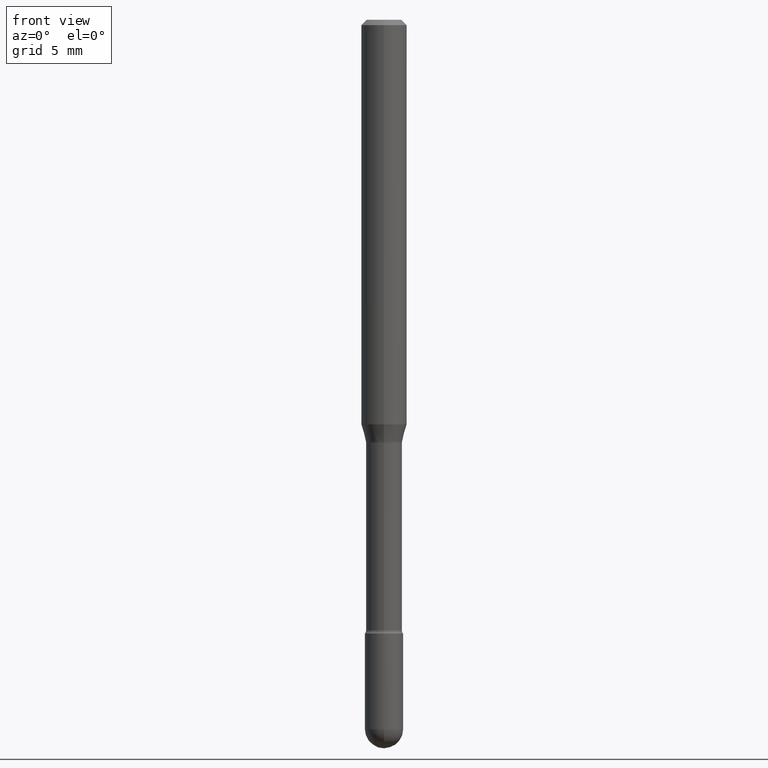
[diagram: clean part render]
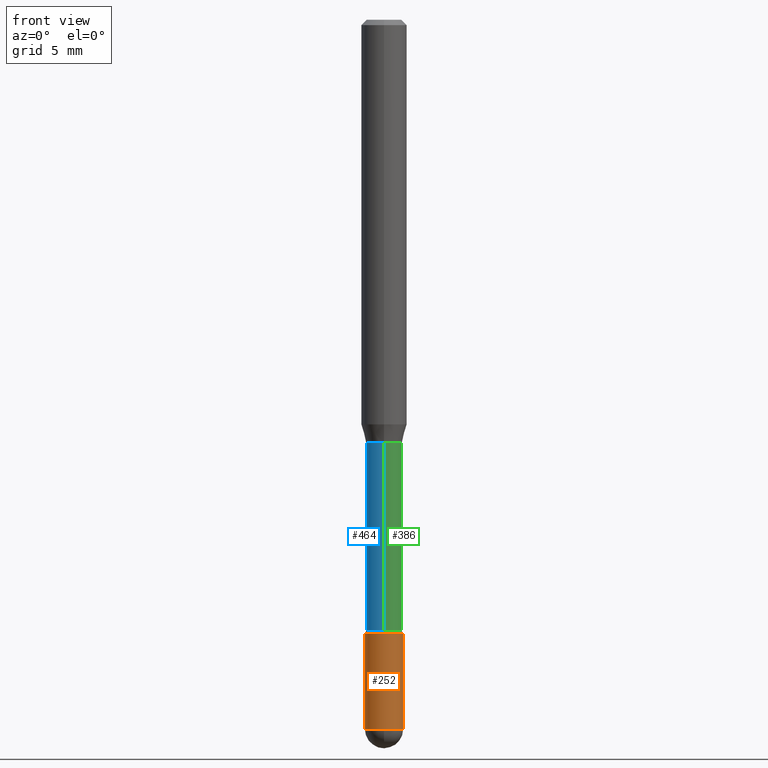
[diagram: same view with three faces highlighted in distinct colors, each labeled with its STEP entity id]
A machine part, front view with three faces highlighted in distinct colors.
Their STEP definitions:

[orange] entity #252 — the highlighted cylindrical surface (edge-blend (fillet) strip) has radius 1.3335 mm, axis along (-0, 0, 1).
#14 = VECTOR ( 'NONE', #418, 39.37007874015748143 ) ;
#20 = DIRECTION ( 'NONE',  ( -2.445468806185136597E-29, 3.491481338843145583E-15, 1.000000000000000000 ) ) ;
#26 = CARTESIAN_POINT ( 'NONE',  ( 4.762550500045553141E-29, -6.799659907397026191E-15, -1.947500000000000009 ) ) ;
#36 = EDGE_CURVE ( 'NONE', #411, #57, #346, .T. ) ;
#41 = AXIS2_PLACEMENT_3D ( 'NONE', #26, #20, #410 ) ;
#48 = ORIENTED_EDGE ( 'NONE', *, *, #36, .F. ) ;
#57 = VERTEX_POINT ( 'NONE', #260 ) ;
#64 = ORIENTED_EDGE ( 'NONE', *, *, #376, .F. ) ;
#66 = CARTESIAN_POINT ( 'NONE',  ( 0.000000000000000000, 0.000000000000000000, 0.000000000000000000 ) ) ;
#87 = CARTESIAN_POINT ( 'NONE',  ( -0.05249999999999999806, -5.968368045399809642E-15, -1.684999999999999831 ) ) ;
#89 = ORIENTED_EDGE ( 'NONE', *, *, #373, .T. ) ;
#92 = VECTOR ( 'NONE', #214, 39.37007874015748143 ) ;
#94 = EDGE_CURVE ( 'NONE', #358, #57, #489, .T. ) ;
#99 = VERTEX_POINT ( 'NONE', #327 ) ;
#123 = ORIENTED_EDGE ( 'NONE', *, *, #249, .T. ) ;
#128 = DIRECTION ( 'NONE',  ( -2.445468806185136597E-29, 3.491481338843145583E-15, 1.000000000000000000 ) ) ;
#137 = AXIS2_PLACEMENT_3D ( 'NONE', #305, #128, #345 ) ;
#150 = CARTESIAN_POINT ( 'NONE',  ( 0.05249999999999999806, -6.708008522252392915E-15, -1.947500000000000009 ) ) ;
#193 = DIRECTION ( 'NONE',  ( -2.445468806185136597E-29, 3.491481338843145583E-15, 1.000000000000000000 ) ) ;
#214 = DIRECTION ( 'NONE',  ( -2.445468806185136877E-29, 3.491481338843145188E-15, 1.000000000000000000 ) ) ;
#221 = CIRCLE ( 'NONE', #137, 0.05249999999999999806 ) ;
#249 = EDGE_CURVE ( 'NONE', #99, #357, #556, .T. ) ;
#252 = ADVANCED_FACE ( 'NONE', ( #517 ), #466, .T. ) ;
#260 = CARTESIAN_POINT ( 'NONE',  ( 0.05249999999999999806, -6.249751596529228901E-15, -1.684999999999999831 ) ) ;
#261 = CARTESIAN_POINT ( 'NONE',  ( 0.05249999999999999806, -3.666055405785289629E-16, 2.559992807292866011E-30 ) ) ;
#293 = CARTESIAN_POINT ( 'NONE',  ( -3.730349362740049563E-16, -0.05250000000000679817, -1.947499999999999565 ) ) ;
#299 = CARTESIAN_POINT ( 'NONE',  ( -0.05249999999999999806, 3.730349362740525838E-16, -2.582440922383825311E-30 ) ) ;
#305 = CARTESIAN_POINT ( 'NONE',  ( 4.762550500045553141E-29, -6.799659907397026191E-15, -1.947500000000000009 ) ) ;
#327 = CARTESIAN_POINT ( 'NONE',  ( -0.05249999999999999806, -5.968368045399809642E-15, -1.947500000000000009 ) ) ;
#330 = AXIS2_PLACEMENT_3D ( 'NONE', #486, #525, #332 ) ;
#332 = DIRECTION ( 'NONE',  ( 1.000000000000000000, -6.982962677686268288E-15, 0.000000000000000000 ) ) ;
#345 = DIRECTION ( 'NONE',  ( 1.000000000000000000, -6.982962677686268288E-15, 0.000000000000000000 ) ) ;
#346 = CIRCLE ( 'NONE', #330, 0.05249999999999999806 ) ;
#357 = VERTEX_POINT ( 'NONE', #293 ) ;
#358 = VERTEX_POINT ( 'NONE', #150 ) ;
#367 = DIRECTION ( 'NONE',  ( 1.000000000000000000, -6.982962677686265922E-15, 4.876176775795935232E-29 ) ) ;
#373 = EDGE_CURVE ( 'NONE', #357, #358, #221, .T. ) ;
#376 = EDGE_CURVE ( 'NONE', #99, #411, #380, .T. ) ;
#380 = LINE ( 'NONE', #299, #14 ) ;
#396 = ORIENTED_EDGE ( 'NONE', *, *, #94, .T. ) ;
#410 = DIRECTION ( 'NONE',  ( 1.000000000000000000, -6.982962677686268288E-15, 0.000000000000000000 ) ) ;
#411 = VERTEX_POINT ( 'NONE', #87 ) ;
#418 = DIRECTION ( 'NONE',  ( -2.445468806185136877E-29, 3.491481338843145188E-15, 1.000000000000000000 ) ) ;
#466 = CYLINDRICAL_SURFACE ( 'NONE', #545, 0.05249999999999999806 ) ;
#486 = CARTESIAN_POINT ( 'NONE',  ( 4.120614938421955121E-29, -5.883146055950699741E-15, -1.684999999999999831 ) ) ;
#489 = LINE ( 'NONE', #261, #92 ) ;
#517 = FACE_OUTER_BOUND ( 'NONE', #518, .T. ) ;
#518 = EDGE_LOOP ( 'NONE', ( #64, #123, #89, #396, #48 ) ) ;
#525 = DIRECTION ( 'NONE',  ( -2.445468806185136597E-29, 3.491481338843145583E-15, 1.000000000000000000 ) ) ;
#545 = AXIS2_PLACEMENT_3D ( 'NONE', #66, #193, #367 ) ;
#556 = CIRCLE ( 'NONE', #41, 0.05249999999999999806 ) ;

[blue] entity #464 — the highlighted cylindrical surface (edge-blend (fillet) strip) has radius 1.2535 mm, axis along (-0, 0, 1).
#17 = ORIENTED_EDGE ( 'NONE', *, *, #69, .F. ) ;
#19 = ORIENTED_EDGE ( 'NONE', *, *, #90, .F. ) ;
#46 = DIRECTION ( 'NONE',  ( -6.982962677686265133E-15, -1.000000000000000000, 2.767829780814856527E-15 ) ) ;
#51 = CARTESIAN_POINT ( 'NONE',  ( 2.841515243112507928E-29, -4.057096135716831102E-15, -1.161974787463810665 ) ) ;
#58 = AXIS2_PLACEMENT_3D ( 'NONE', #51, #138, #46 ) ;
#62 = EDGE_LOOP ( 'NONE', ( #17, #328, #457, #19 ) ) ;
#69 = EDGE_CURVE ( 'NONE', #361, #229, #75, .T. ) ;
#75 = LINE ( 'NONE', #333, #501 ) ;
#80 = LINE ( 'NONE', #377, #275 ) ;
#90 = EDGE_CURVE ( 'NONE', #229, #322, #183, .T. ) ;
#102 = CARTESIAN_POINT ( 'NONE',  ( -3.446092081437764548E-16, -0.04935000000000588222, -1.675803397366418146 ) ) ;
#107 = EDGE_CURVE ( 'NONE', #544, #322, #80, .T. ) ;
#122 = DIRECTION ( 'NONE',  ( -2.445419017493962696E-29, 3.491552639082703097E-15, 1.000000000000000000 ) ) ;
#138 = DIRECTION ( 'NONE',  ( -2.445419017493962696E-29, 3.491552639082703097E-15, 1.000000000000000000 ) ) ;
#163 = CARTESIAN_POINT ( 'NONE',  ( 3.618438881858721251E-16, 0.04934999999999418324, -1.675803397366418590 ) ) ;
#183 = CIRCLE ( 'NONE', #58, 0.04934999999999999803 ) ;
#204 = DIRECTION ( 'NONE',  ( -6.982962677686266711E-15, -1.000000000000000000, 3.491552639082704281E-15 ) ) ;
#212 = FACE_OUTER_BOUND ( 'NONE', #62, .T. ) ;
#229 = VERTEX_POINT ( 'NONE', #234 ) ;
#234 = CARTESIAN_POINT ( 'NONE',  ( 3.506528400976504978E-16, 0.04934999999999594572, -1.161974787463810888 ) ) ;
#275 = VECTOR ( 'NONE', #284, 39.37007874015748143 ) ;
#280 = EDGE_CURVE ( 'NONE', #361, #544, #355, .T. ) ;
#284 = DIRECTION ( 'NONE',  ( -2.445419017493962696E-29, 3.491552639082703097E-15, 1.000000000000000000 ) ) ;
#294 = CARTESIAN_POINT ( 'NONE',  ( -3.446092081437888300E-16, -0.04935000000000405035, -1.161974787463810443 ) ) ;
#322 = VERTEX_POINT ( 'NONE', #294 ) ;
#323 = CARTESIAN_POINT ( 'NONE',  ( 4.098041497500830929E-29, -5.851155774658477044E-15, -1.675803397366418368 ) ) ;
#328 = ORIENTED_EDGE ( 'NONE', *, *, #280, .T. ) ;
#333 = CARTESIAN_POINT ( 'NONE',  ( 3.506528400976094771E-16, 0.04935000000000001191, 3.057652761525145900E-16 ) ) ;
#337 = CYLINDRICAL_SURFACE ( 'NONE', #483, 0.04935000000000001191 ) ;
#355 = CIRCLE ( 'NONE', #417, 0.04935000000000003273 ) ;
#361 = VERTEX_POINT ( 'NONE', #163 ) ;
#377 = CARTESIAN_POINT ( 'NONE',  ( -3.446092081438173276E-16, -0.04935000000000001191, 6.503815216299775858E-16 ) ) ;
#387 = DIRECTION ( 'NONE',  ( -2.445419017493962696E-29, 3.491552639082703097E-15, 1.000000000000000000 ) ) ;
#417 = AXIS2_PLACEMENT_3D ( 'NONE', #323, #122, #507 ) ;
#426 = DIRECTION ( 'NONE',  ( -2.445419017493962696E-29, 3.491552639082703097E-15, 1.000000000000000000 ) ) ;
#457 = ORIENTED_EDGE ( 'NONE', *, *, #107, .T. ) ;
#464 = ADVANCED_FACE ( 'NONE', ( #212 ), #337, .T. ) ;
#478 = CARTESIAN_POINT ( 'NONE',  ( -1.169113584055446105E-44, 1.669184350826100908E-30, 4.780733988912460139E-16 ) ) ;
#483 = AXIS2_PLACEMENT_3D ( 'NONE', #478, #387, #204 ) ;
#501 = VECTOR ( 'NONE', #426, 39.37007874015748143 ) ;
#507 = DIRECTION ( 'NONE',  ( -6.982962677686265133E-15, -1.000000000000000000, 5.535659561629709110E-15 ) ) ;
#544 = VERTEX_POINT ( 'NONE', #102 ) ;

[green] entity #386 — the highlighted cylindrical surface (edge-blend (fillet) strip) has radius 1.2535 mm, axis along (-0, 0, 1).
#27 = ORIENTED_EDGE ( 'NONE', *, *, #69, .T. ) ;
#69 = EDGE_CURVE ( 'NONE', #361, #229, #75, .T. ) ;
#75 = LINE ( 'NONE', #333, #501 ) ;
#80 = LINE ( 'NONE', #377, #275 ) ;
#102 = CARTESIAN_POINT ( 'NONE',  ( -3.446092081437764548E-16, -0.04935000000000588222, -1.675803397366418146 ) ) ;
#107 = EDGE_CURVE ( 'NONE', #544, #322, #80, .T. ) ;
#125 = DIRECTION ( 'NONE',  ( -6.982962677686265133E-15, -1.000000000000000000, 5.535659561629709110E-15 ) ) ;
#163 = CARTESIAN_POINT ( 'NONE',  ( 3.618438881858721251E-16, 0.04934999999999418324, -1.675803397366418590 ) ) ;
#165 = CIRCLE ( 'NONE', #297, 0.04934999999999999803 ) ;
#170 = CARTESIAN_POINT ( 'NONE',  ( -1.169113584055446105E-44, 1.669184350826100908E-30, 4.780733988912460139E-16 ) ) ;
#186 = ORIENTED_EDGE ( 'NONE', *, *, #107, .F. ) ;
#190 = ORIENTED_EDGE ( 'NONE', *, *, #223, .F. ) ;
#196 = CIRCLE ( 'NONE', #502, 0.04935000000000003273 ) ;
#223 = EDGE_CURVE ( 'NONE', #322, #229, #165, .T. ) ;
#229 = VERTEX_POINT ( 'NONE', #234 ) ;
#234 = CARTESIAN_POINT ( 'NONE',  ( 3.506528400976504978E-16, 0.04934999999999594572, -1.161974787463810888 ) ) ;
#275 = VECTOR ( 'NONE', #284, 39.37007874015748143 ) ;
#282 = DIRECTION ( 'NONE',  ( -6.982962677686265133E-15, -1.000000000000000000, 2.767829780814856527E-15 ) ) ;
#284 = DIRECTION ( 'NONE',  ( -2.445419017493962696E-29, 3.491552639082703097E-15, 1.000000000000000000 ) ) ;
#294 = CARTESIAN_POINT ( 'NONE',  ( -3.446092081437888300E-16, -0.04935000000000405035, -1.161974787463810443 ) ) ;
#296 = CYLINDRICAL_SURFACE ( 'NONE', #493, 0.04935000000000001191 ) ;
#297 = AXIS2_PLACEMENT_3D ( 'NONE', #549, #329, #282 ) ;
#322 = VERTEX_POINT ( 'NONE', #294 ) ;
#329 = DIRECTION ( 'NONE',  ( -2.445419017493962696E-29, 3.491552639082703097E-15, 1.000000000000000000 ) ) ;
#333 = CARTESIAN_POINT ( 'NONE',  ( 3.506528400976094771E-16, 0.04935000000000001191, 3.057652761525145900E-16 ) ) ;
#342 = FACE_OUTER_BOUND ( 'NONE', #514, .T. ) ;
#343 = DIRECTION ( 'NONE',  ( -2.445419017493962696E-29, 3.491552639082703097E-15, 1.000000000000000000 ) ) ;
#361 = VERTEX_POINT ( 'NONE', #163 ) ;
#377 = CARTESIAN_POINT ( 'NONE',  ( -3.446092081438173276E-16, -0.04935000000000001191, 6.503815216299775858E-16 ) ) ;
#386 = ADVANCED_FACE ( 'NONE', ( #342 ), #296, .T. ) ;
#415 = EDGE_CURVE ( 'NONE', #544, #361, #196, .T. ) ;
#426 = DIRECTION ( 'NONE',  ( -2.445419017493962696E-29, 3.491552639082703097E-15, 1.000000000000000000 ) ) ;
#484 = ORIENTED_EDGE ( 'NONE', *, *, #415, .T. ) ;
#487 = DIRECTION ( 'NONE',  ( -2.445419017493962696E-29, 3.491552639082703097E-15, 1.000000000000000000 ) ) ;
#493 = AXIS2_PLACEMENT_3D ( 'NONE', #170, #343, #529 ) ;
#501 = VECTOR ( 'NONE', #426, 39.37007874015748143 ) ;
#502 = AXIS2_PLACEMENT_3D ( 'NONE', #526, #487, #125 ) ;
#514 = EDGE_LOOP ( 'NONE', ( #484, #27, #190, #186 ) ) ;
#526 = CARTESIAN_POINT ( 'NONE',  ( 4.098041497500830929E-29, -5.851155774658477044E-15, -1.675803397366418368 ) ) ;
#529 = DIRECTION ( 'NONE',  ( -6.982962677686266711E-15, -1.000000000000000000, 3.491552639082704281E-15 ) ) ;
#544 = VERTEX_POINT ( 'NONE', #102 ) ;
#549 = CARTESIAN_POINT ( 'NONE',  ( 2.841515243112507928E-29, -4.057096135716831102E-15, -1.161974787463810665 ) ) ;